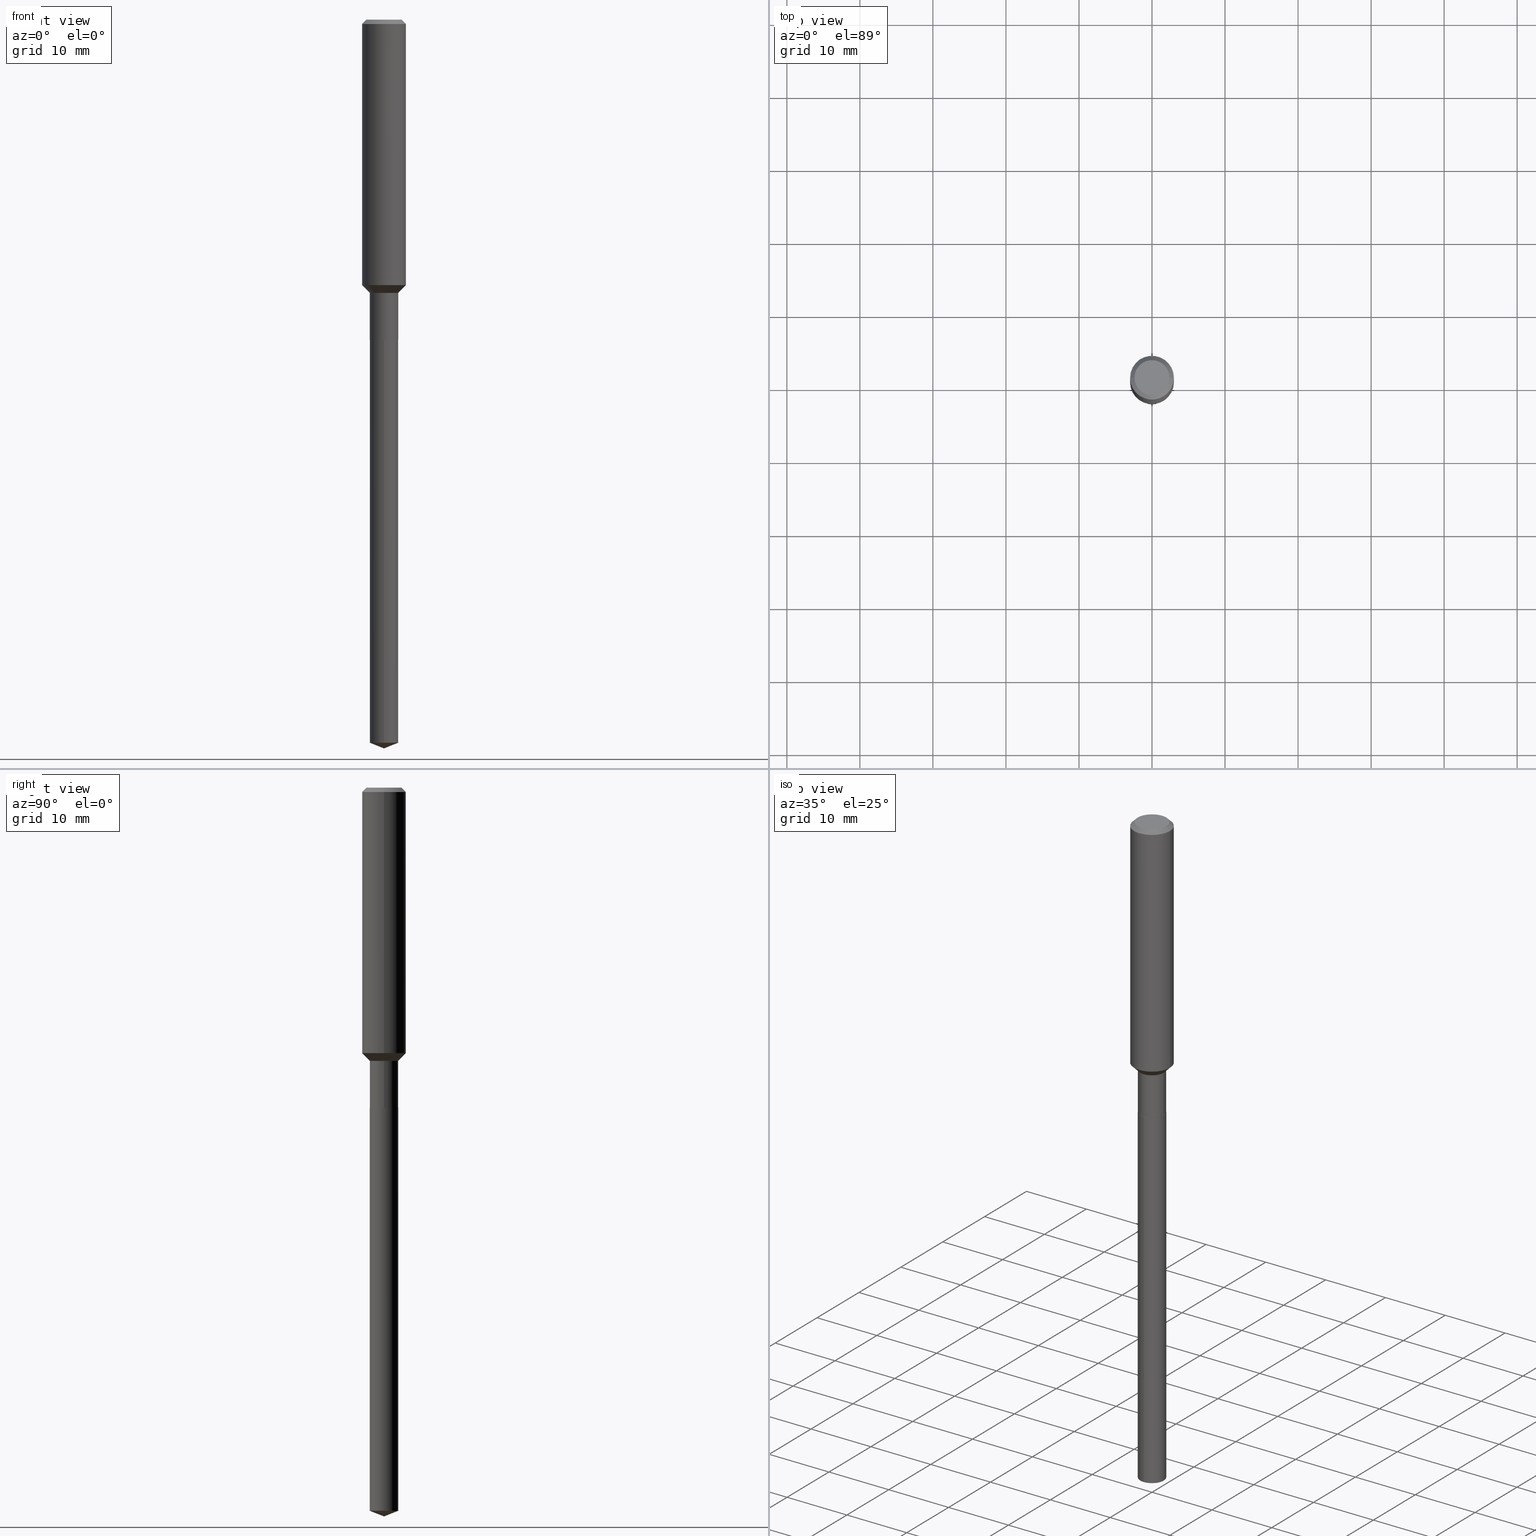
[diagram: canonical four-view strip — front | top / right | iso, engineering-drawing reading convention]
A machine part, canonical four-view strip (front | top / right | iso — engineering-drawing reading convention). The complete STEP part file that produces these views, byte-faithful:
ISO-10303-21;
HEADER;
FILE_DESCRIPTION (( 'STEP AP203' ),
    '1' );
FILE_NAME ('66718.STEP',
    '2024-04-25T04:26:13',
    ( '' ),
    ( '' ),
    'SwSTEP 2.0',
    'SolidWorks 2023',
    '' );
FILE_SCHEMA (( 'CONFIG_CONTROL_DESIGN' ));
ENDSEC;

DATA;
#1 = DIRECTION ( 'NONE',  ( 0.000000000000000000, 0.000000000000000000, 1.000000000000000000 ) ) ;
#2 = LINE ( 'NONE', #48, #432 ) ;
#3 = CIRCLE ( 'NONE', #347, 0.07675000000000001266 ) ;
#4 = AXIS2_PLACEMENT_3D ( 'NONE', #207, #213, #256 ) ;
#5 = CC_DESIGN_PERSON_AND_ORGANIZATION_ASSIGNMENT ( #417, #232, ( #169 ) ) ;
#6 = APPROVAL_PERSON_ORGANIZATION ( #115, #163, #308 ) ;
#7 = CALENDAR_DATE ( 2024, 25, 4 ) ;
#8 = DIRECTION ( 'NONE',  ( -2.445468806185136597E-29, 3.491481338843145583E-15, 1.000000000000000000 ) ) ;
#9 = EDGE_LOOP ( 'NONE', ( #483, #46, #288, #236 ) ) ;
#10 = DIRECTION ( 'NONE',  ( 1.000000000000000000, -6.982962677686271444E-15, 0.000000000000000000 ) ) ;
#11 = PERSON_AND_ORGANIZATION ( #447, #203 ) ;
#12 = DIRECTION ( 'NONE',  ( -2.445468806185136597E-29, 3.491481338843145583E-15, 1.000000000000000000 ) ) ;
#13 = CIRCLE ( 'NONE', #482, 0.07625000000000001221 ) ;
#14 = FACE_OUTER_BOUND ( 'NONE', #441, .T. ) ;
#15 = FACE_OUTER_BOUND ( 'NONE', #98, .T. ) ;
#16 = EDGE_CURVE ( 'NONE', #398, #446, #346, .T. ) ;
#17 = DIRECTION ( 'NONE',  ( -6.982962677686265922E-15, -1.000000000000000000, 3.498627837350086264E-15 ) ) ;
#18 = EDGE_LOOP ( 'NONE', ( #457, #463 ) ) ;
#19 = CIRCLE ( 'NONE', #306, 0.1180999999999999966 ) ;
#20 = DIRECTION ( 'NONE',  ( -6.982962677686265133E-15, -1.000000000000000000, 3.559411066663534686E-15 ) ) ;
#21 =( GEOMETRIC_REPRESENTATION_CONTEXT ( 3 ) GLOBAL_UNCERTAINTY_ASSIGNED_CONTEXT ( ( #238 ) ) GLOBAL_UNIT_ASSIGNED_CONTEXT ( ( #464, #459, #342 ) ) REPRESENTATION_CONTEXT ( 'NONE', 'WORKASPACE' ) );
#22 = VERTEX_POINT ( 'NONE', #245 ) ;
#23 = CARTESIAN_POINT ( 'NONE',  ( -8.666864025003283273E-28, 1.237438874958448697E-13, 35.44107874015747939 ) ) ;
#24 = ORIENTED_EDGE ( 'NONE', *, *, #31, .F. ) ;
#25 = CARTESIAN_POINT ( 'NONE',  ( 4.221368253236783353E-29, -6.026995087111038735E-15, -1.726200000000000401 ) ) ;
#26 = VERTEX_POINT ( 'NONE', #389 ) ;
#27 = PRODUCT ( '66718', '66718', '', ( #78 ) ) ;
#28 = DIRECTION ( 'NONE',  ( -6.497071151882099326E-15, -0.9304175679820215761, 0.3665012267243045185 ) ) ;
#29 = SECURITY_CLASSIFICATION ( '', '', #421 ) ;
#30 = VERTEX_POINT ( 'NONE', #418 ) ;
#31 = EDGE_CURVE ( 'NONE', #50, #84, #349, .T. ) ;
#32 = LINE ( 'NONE', #191, #329 ) ;
#33 = EDGE_CURVE ( 'NONE', #473, #44, #279, .T. ) ;
#34 = DIRECTION ( 'NONE',  ( 1.000000000000000000, -6.982962677686266711E-15, 0.000000000000000000 ) ) ;
#35 = APPROVAL_ROLE ( '' ) ;
#36 = CONICAL_SURFACE ( 'NONE', #320, 0.1180999999999999966, 0.7853981633974459475 ) ;
#37 = LOCAL_TIME ( 0, 26, 13.00000000000000000, #276 ) ;
#38 = DIRECTION ( 'NONE',  ( 0.7071067811865483499, -2.468850131082265738E-15, 0.7071067811865466846 ) ) ;
#39 = DIRECTION ( 'NONE',  ( -2.445430808607122384E-29, 3.491535753537549609E-15, 1.000000000000000000 ) ) ;
#40 = APPLICATION_PROTOCOL_DEFINITION ( 'international standard', 'config_control_design', 1994, #107 ) ;
#41 = DIRECTION ( 'NONE',  ( -2.445468806185136597E-29, 3.491481338843145583E-15, 1.000000000000000000 ) ) ;
#42 = COORDINATED_UNIVERSAL_TIME_OFFSET ( 5, 0, .BEHIND. ) ;
#43 = CARTESIAN_POINT ( 'NONE',  ( 4.220145518833691112E-29, -6.025249346441617231E-15, -1.725700000000000456 ) ) ;
#44 = VERTEX_POINT ( 'NONE', #81 ) ;
#45 = DIRECTION ( 'NONE',  ( -2.445430808607122384E-29, 3.491535753537550004E-15, 1.000000000000000000 ) ) ;
#46 = ORIENTED_EDGE ( 'NONE', *, *, #366, .T. ) ;
#47 = EDGE_CURVE ( 'NONE', #223, #22, #2, .T. ) ;
#48 = CARTESIAN_POINT ( 'NONE',  ( -5.359423855123787186E-16, -0.07675000000000603562, -1.726199999999999957 ) ) ;
#49 = DIRECTION ( 'NONE',  ( 1.000000000000000000, -6.982962677686266711E-15, 0.000000000000000000 ) ) ;
#50 = VERTEX_POINT ( 'NONE', #75 ) ;
#51 = AXIS2_PLACEMENT_3D ( 'NONE', #201, #114, #490 ) ;
#52 = CARTESIAN_POINT ( 'NONE',  ( -0.07625000000000001221, -5.482557023919850858E-15, -1.726200000000000401 ) ) ;
#53 = DIRECTION ( 'NONE',  ( 2.438088387897960049E-29, -3.491481338843145188E-15, -1.000000000000000000 ) ) ;
#54 = ORIENTED_EDGE ( 'NONE', *, *, #366, .F. ) ;
#55 = DATE_AND_TIME ( #381, #405 ) ;
#56 = CARTESIAN_POINT ( 'NONE',  ( 4.220145518833691112E-29, -6.025249346441617231E-15, -1.725700000000000456 ) ) ;
#57 = ORIENTED_EDGE ( 'NONE', *, *, #16, .T. ) ;
#58 = EDGE_CURVE ( 'NONE', #398, #44, #69, .T. ) ;
#59 = AXIS2_PLACEMENT_3D ( 'NONE', #277, #465, #391 ) ;
#60 = CARTESIAN_POINT ( 'NONE',  ( 4.221368253236783353E-29, -6.026995087111038735E-15, -1.726200000000000401 ) ) ;
#61 = AXIS2_PLACEMENT_3D ( 'NONE', #72, #229, #230 ) ;
#62 = VERTEX_POINT ( 'NONE', #384 ) ;
#63 = CARTESIAN_POINT ( 'NONE',  ( 5.776197320209328408E-31, -8.246878922347560526E-17, -0.02362000000000014435 ) ) ;
#64 = EDGE_CURVE ( 'NONE', #62, #473, #3, .T. ) ;
#65 = EDGE_LOOP ( 'NONE', ( #328, #408, #292 ) ) ;
#66 = LINE ( 'NONE', #370, #110 ) ;
#67 = EDGE_LOOP ( 'NONE', ( #316, #129, #335, #358 ) ) ;
#68 = CARTESIAN_POINT ( 'NONE',  ( 0.1180999999999999966, -8.926936027602933910E-16, -0.02362000000000014435 ) ) ;
#69 = CIRCLE ( 'NONE', #227, 0.07674999999999997102 ) ;
#70 = AXIS2_PLACEMENT_3D ( 'NONE', #437, #360, #131 ) ;
#71 = ADVANCED_FACE ( 'NONE', ( #197 ), #343, .T. ) ;
#72 = CARTESIAN_POINT ( 'NONE',  ( 4.221368253236783353E-29, -6.026995087111038735E-15, -1.726200000000000401 ) ) ;
#73 = DATE_AND_TIME ( #317, #37 ) ;
#74 = APPROVAL_STATUS ( 'not_yet_approved' ) ;
#75 = CARTESIAN_POINT ( 'NONE',  ( 0.1181000000000001632, -5.823267150989537830E-15, -1.431650000000000089 ) ) ;
#76 = CIRCLE ( 'NONE', #404, 0.09447999999999998066 ) ;
#77 = VECTOR ( 'NONE', #484, 39.37007874015748143 ) ;
#78 = MECHANICAL_CONTEXT ( 'NONE', #107, 'mechanical' ) ;
#79 = DIRECTION ( 'NONE',  ( 1.000000000000000000, -6.982962677686261977E-15, 0.000000000000000000 ) ) ;
#80 = APPROVAL ( #244, 'UNSPECIFIED' ) ;
#81 = CARTESIAN_POINT ( 'NONE',  ( 0.07674999999999997102, -5.678894397628374357E-15, -1.473000000000000087 ) ) ;
#82 = EDGE_LOOP ( 'NONE', ( #478, #264, #255, #221 ) ) ;
#83 = DESIGN_CONTEXT ( 'detailed design', #198, 'design' ) ;
#84 = VERTEX_POINT ( 'NONE', #166 ) ;
#85 = EDGE_CURVE ( 'NONE', #50, #446, #327, .T. ) ;
#86 = COORDINATED_UNIVERSAL_TIME_OFFSET ( 5, 0, .BEHIND. ) ;
#87 = CARTESIAN_POINT ( 'NONE',  ( 3.602175551510706507E-29, -5.142952012115953829E-15, -1.473000000000000087 ) ) ;
#88 = CARTESIAN_POINT ( 'NONE',  ( 5.776197320209328408E-31, -8.246878922347560526E-17, -0.02362000000000014435 ) ) ;
#89 = CARTESIAN_POINT ( 'NONE',  ( -0.1181000000000000799, 8.391509709326788873E-16, -5.809262341591047988E-30 ) ) ;
#90 = CONICAL_SURFACE ( 'NONE', #373, 99.94676754583763056, 1.195550537616111519 ) ;
#91 = AXIS2_PLACEMENT_3D ( 'NONE', #139, #295, #442 ) ;
#92 = DIRECTION ( 'NONE',  ( -2.445430808607122384E-29, 3.491535753537550004E-15, 1.000000000000000000 ) ) ;
#93 = ADVANCED_FACE ( 'NONE', ( #382 ), #297, .T. ) ;
#94 = ORIENTED_EDGE ( 'NONE', *, *, #16, .F. ) ;
#95 = DIRECTION ( 'NONE',  ( -2.445468806185136597E-29, 3.491481338843145583E-15, 1.000000000000000000 ) ) ;
#96 = ORIENTED_EDGE ( 'NONE', *, *, #413, .T. ) ;
#97 = FACE_OUTER_BOUND ( 'NONE', #439, .T. ) ;
#98 = EDGE_LOOP ( 'NONE', ( #246, #57, #219, #257 ) ) ;
#99 = EDGE_CURVE ( 'NONE', #26, #473, #122, .T. ) ;
#100 = AXIS2_PLACEMENT_3D ( 'NONE', #56, #218, #210 ) ;
#101 = CARTESIAN_POINT ( 'NONE',  ( 9.608097647017384932E-29, -1.371824397564903404E-14, -3.929000000000000270 ) ) ;
#102 = ORIENTED_EDGE ( 'NONE', *, *, #145, .F. ) ;
#103 = LINE ( 'NONE', #68, #377 ) ;
#104 = ORIENTED_EDGE ( 'NONE', *, *, #33, .T. ) ;
#105 = CYLINDRICAL_SURFACE ( 'NONE', #233, 0.1181000000000000799 ) ;
#106 = EDGE_CURVE ( 'NONE', #446, #50, #466, .T. ) ;
#107 = APPLICATION_CONTEXT ( 'configuration controlled 3d designs of mechanical parts and assemblies' ) ;
#108 = LINE ( 'NONE', #365, #77 ) ;
#109 = CIRCLE ( 'NONE', #348, 0.07674999999999997102 ) ;
#110 = VECTOR ( 'NONE', #28, 39.37007874015748143 ) ;
#111 = FACE_OUTER_BOUND ( 'NONE', #82, .T. ) ;
#112 = ADVANCED_FACE ( 'NONE', ( #456 ), #452, .T. ) ;
#113 = COORDINATED_UNIVERSAL_TIME_OFFSET ( 5, 0, .BEHIND. ) ;
#114 = DIRECTION ( 'NONE',  ( 2.445468806185136597E-29, -3.491481338843145583E-15, -1.000000000000000000 ) ) ;
#115 = PERSON_AND_ORGANIZATION ( #447, #203 ) ;
#116 = ORIENTED_EDGE ( 'NONE', *, *, #269, .F. ) ;
#117 = AXIS2_PLACEMENT_3D ( 'NONE', #319, #290, #20 ) ;
#118 = DATE_AND_TIME ( #7, #390 ) ;
#119 = CARTESIAN_POINT ( 'NONE',  ( -0.07674999999999997102, -4.597610462420077043E-15, -1.473000000000000087 ) ) ;
#120 = EDGE_CURVE ( 'NONE', #435, #223, #202, .T. ) ;
#121 = APPROVAL_DATE_TIME ( #237, #155 ) ;
#122 = LINE ( 'NONE', #125, #336 ) ;
#123 = EDGE_CURVE ( 'NONE', #223, #435, #388, .T. ) ;
#124 = ORIENTED_EDGE ( 'NONE', *, *, #394, .T. ) ;
#125 = CARTESIAN_POINT ( 'NONE',  ( 0.07625000000000001221, -6.559445991284616256E-15, -1.726200000000000401 ) ) ;
#126 = AXIS2_PLACEMENT_3D ( 'NONE', #254, #251, #362 ) ;
#127 = LOCAL_TIME ( 0, 26, 13.00000000000000000, #86 ) ;
#128 = FACE_OUTER_BOUND ( 'NONE', #184, .T. ) ;
#129 = ORIENTED_EDGE ( 'NONE', *, *, #106, .T. ) ;
#130 = CARTESIAN_POINT ( 'NONE',  ( -8.666864025003283273E-28, 1.237438874958448697E-13, 35.44107874015747939 ) ) ;
#131 = DIRECTION ( 'NONE',  ( 1.000000000000000000, -6.982962677686266711E-15, 4.876176775795936353E-29 ) ) ;
#132 = VERTEX_POINT ( 'NONE', #52 ) ;
#133 = CIRCLE ( 'NONE', #100, 0.07675000000000001266 ) ;
#134 = AXIS2_PLACEMENT_3D ( 'NONE', #25, #265, #375 ) ;
#135 = DIRECTION ( 'NONE',  ( -1.000000000000000000, 6.982962677686265922E-15, -4.876176775795935793E-29 ) ) ;
#136 = EDGE_LOOP ( 'NONE', ( #480, #226, #424, #284 ) ) ;
#137 = FACE_OUTER_BOUND ( 'NONE', #144, .T. ) ;
#138 = ORIENTED_EDGE ( 'NONE', *, *, #434, .T. ) ;
#139 = CARTESIAN_POINT ( 'NONE',  ( 4.716267017698007905E-46, -6.733579360998555036E-32, -1.928573779297252010E-17 ) ) ;
#140 = EDGE_LOOP ( 'NONE', ( #94, #425, #294, #371 ) ) ;
#141 = AXIS2_PLACEMENT_3D ( 'NONE', #192, #183, #450 ) ;
#142 = DIRECTION ( 'NONE',  ( -2.445468806185136597E-29, 3.491481338843145583E-15, 1.000000000000000000 ) ) ;
#143 = CIRCLE ( 'NONE', #91, 0.09447999999999998066 ) ;
#144 = EDGE_LOOP ( 'NONE', ( #96, #333 ) ) ;
#145 = EDGE_CURVE ( 'NONE', #30, #22, #187, .T. ) ;
#146 = FACE_OUTER_BOUND ( 'NONE', #186, .T. ) ;
#147 = DIRECTION ( 'NONE',  ( -2.445468806185136597E-29, 3.491481338843145583E-15, 1.000000000000000000 ) ) ;
#148 = CARTESIAN_POINT ( 'NONE',  ( -0.1180999999999999966, -1.701373053056452935E-15, -0.02362000000000014435 ) ) ;
#149 = VECTOR ( 'NONE', #422, 39.37007874015748143 ) ;
#150 = DIRECTION ( 'NONE',  ( -2.445430808607122384E-29, 3.491535753537550004E-15, 1.000000000000000000 ) ) ;
#151 = CONICAL_SURFACE ( 'NONE', #168, 99.94676754583763056, 1.195550537616111519 ) ;
#152 = CIRCLE ( 'NONE', #242, 0.07625000000000001221 ) ;
#153 = ADVANCED_FACE ( 'NONE', ( #474 ), #397, .F. ) ;
#154 = DATE_TIME_ROLE ( 'creation_date' ) ;
#155 = APPROVAL ( #74, 'UNSPECIFIED' ) ;
#156 = CARTESIAN_POINT ( 'NONE',  ( 4.221368253236783353E-29, -6.026995087111038735E-15, -1.726200000000000401 ) ) ;
#157 = CARTESIAN_POINT ( 'NONE',  ( 9.534231436046332391E-29, -1.361259173991458083E-14, -3.898767370996552906 ) ) ;
#158 = ADVANCED_FACE ( 'NONE', ( #167 ), #402, .T. ) ;
#159 = PERSON_AND_ORGANIZATION_ROLE ( 'design_owner' ) ;
#160 = DIRECTION ( 'NONE',  ( -6.982962677686265133E-15, -1.000000000000000000, 0.000000000000000000 ) ) ;
#161 = AXIS2_PLACEMENT_3D ( 'NONE', #285, #53, #135 ) ;
#162 = PERSON_AND_ORGANIZATION ( #447, #203 ) ;
#163 = APPROVAL ( #273, 'UNSPECIFIED' ) ;
#164 = VERTEX_POINT ( 'NONE', #355 ) ;
#165 = CARTESIAN_POINT ( 'NONE',  ( 0.000000000000000000, 0.000000000000000000, 0.000000000000000000 ) ) ;
#166 = CARTESIAN_POINT ( 'NONE',  ( 0.1180999999999999966, -9.071566814582237199E-16, -0.02362000000000014435 ) ) ;
#167 = FACE_OUTER_BOUND ( 'NONE', #354, .T. ) ;
#168 = AXIS2_PLACEMENT_3D ( 'NONE', #23, #150, #222 ) ;
#169 = PRODUCT_DEFINITION_FORMATION_WITH_SPECIFIED_SOURCE ( 'ANY', '', #27, .NOT_KNOWN. ) ;
#170 = LINE ( 'NONE', #89, #228 ) ;
#171 = EDGE_CURVE ( 'NONE', #296, #164, #76, .T. ) ;
#172 = DIRECTION ( 'NONE',  ( -2.445468806185136597E-29, 3.491481338843145583E-15, 1.000000000000000000 ) ) ;
#173 = APPROVAL_ROLE ( '' ) ;
#174 = ADVANCED_FACE ( 'NONE', ( #128 ), #283, .T. ) ;
#175 = CARTESIAN_POINT ( 'NONE',  ( 3.602175551510706507E-29, -5.142952012115953829E-15, -1.473000000000000087 ) ) ;
#176 = ORIENTED_EDGE ( 'NONE', *, *, #438, .F. ) ;
#177 = CIRCLE ( 'NONE', #258, 0.1180999999999999966 ) ;
#178 = AXIS2_PLACEMENT_3D ( 'NONE', #175, #172, #324 ) ;
#179 = CC_DESIGN_APPROVAL ( #163, ( #169 ) ) ;
#180 = CARTESIAN_POINT ( 'NONE',  ( 5.776197320209328408E-31, -8.246878922347560526E-17, -0.02362000000000014435 ) ) ;
#181 = PRODUCT_DEFINITION ( 'UNKNOWN', '', #169, #83 ) ;
#182 = ORIENTED_EDGE ( 'NONE', *, *, #171, .F. ) ;
#183 = DIRECTION ( 'NONE',  ( -2.445468806185136597E-29, 3.491481338843145583E-15, 1.000000000000000000 ) ) ;
#184 = EDGE_LOOP ( 'NONE', ( #189, #124, #204, #367 ) ) ;
#185 = LINE ( 'NONE', #224, #467 ) ;
#186 = EDGE_LOOP ( 'NONE', ( #248, #400, #369, #24 ) ) ;
#187 = CIRCLE ( 'NONE', #266, 0.07675000000000001266 ) ;
#188 = CARTESIAN_POINT ( 'NONE',  ( -0.1181000000000001632, -4.159428287822109792E-15, -1.431650000000000089 ) ) ;
#189 = ORIENTED_EDGE ( 'NONE', *, *, #123, .T. ) ;
#190 = ADVANCED_FACE ( 'NONE', ( #14 ), #90, .T. ) ;
#191 = CARTESIAN_POINT ( 'NONE',  ( 0.07674999999999997102, -5.678894397628374357E-15, -1.473000000000000087 ) ) ;
#192 = CARTESIAN_POINT ( 'NONE',  ( 3.602175551510706507E-29, -5.142952012115953829E-15, -1.473000000000000087 ) ) ;
#193 = APPLICATION_PROTOCOL_DEFINITION ( 'international standard', 'config_control_design', 1994, #198 ) ;
#194 = CONICAL_SURFACE ( 'NONE', #178, 0.07674999999999997102, 0.7853981633974495002 ) ;
#195 = APPROVAL_PERSON_ORGANIZATION ( #11, #80, #173 ) ;
#196 = PERSON_AND_ORGANIZATION_ROLE ( 'classification_officer' ) ;
#197 = FACE_OUTER_BOUND ( 'NONE', #274, .T. ) ;
#198 = APPLICATION_CONTEXT ( 'configuration controlled 3d designs of mechanical parts and assemblies' ) ;
#199 =( LENGTH_UNIT ( ) NAMED_UNIT ( * ) SI_UNIT ( $, .METRE. ) );
#200 = DIRECTION ( 'NONE',  ( -2.445430808607122384E-29, 3.491535753537550004E-15, 1.000000000000000000 ) ) ;
#201 = CARTESIAN_POINT ( 'NONE',  ( 5.776197320209328408E-31, -8.246878922347560526E-17, -0.02362000000000014435 ) ) ;
#202 = CIRCLE ( 'NONE', #451, 0.07675000000000001266 ) ;
#203 = ORGANIZATION ( 'UNSPECIFIED', 'UNSPECIFIED', '' ) ;
#204 = ORIENTED_EDGE ( 'NONE', *, *, #471, .F. ) ;
#205 = APPROVAL_DATE_TIME ( #118, #163 ) ;
#206 = ORIENTED_EDGE ( 'NONE', *, *, #120, .T. ) ;
#207 = CARTESIAN_POINT ( 'NONE',  ( 0.000000000000000000, 0.000000000000000000, 0.000000000000000000 ) ) ;
#208 = ADVANCED_FACE ( 'NONE', ( #15 ), #194, .T. ) ;
#209 = ORIENTED_EDGE ( 'NONE', *, *, #376, .T. ) ;
#210 = DIRECTION ( 'NONE',  ( 1.000000000000000000, -6.982962677686271444E-15, 0.000000000000000000 ) ) ;
#211 = VECTOR ( 'NONE', #234, 39.37007874015748143 ) ;
#212 = ORIENTED_EDGE ( 'NONE', *, *, #394, .F. ) ;
#213 = DIRECTION ( 'NONE',  ( -2.445468806185136597E-29, 3.491481338843145583E-15, 1.000000000000000000 ) ) ;
#214 = CALENDAR_DATE ( 2024, 25, 4 ) ;
#215 = CARTESIAN_POINT ( 'NONE',  ( -0.1180999999999999966, 7.422191030112725094E-16, -0.02362000000000014435 ) ) ;
#216 = ORIENTED_EDGE ( 'NONE', *, *, #33, .F. ) ;
#217 = ADVANCED_FACE ( 'NONE', ( #137 ), #326, .F. ) ;
#218 = DIRECTION ( 'NONE',  ( -2.445468806185136597E-29, 3.491481338843145583E-15, 1.000000000000000000 ) ) ;
#219 = ORIENTED_EDGE ( 'NONE', *, *, #85, .F. ) ;
#220 = DIRECTION ( 'NONE',  ( -2.445430808607122384E-29, 3.491535753537549609E-15, 1.000000000000000000 ) ) ;
#221 = ORIENTED_EDGE ( 'NONE', *, *, #99, .F. ) ;
#222 = DIRECTION ( 'NONE',  ( -6.982962677686265922E-15, -1.000000000000000000, 3.498627837350086264E-15 ) ) ;
#223 = VERTEX_POINT ( 'NONE', #433 ) ;
#224 = CARTESIAN_POINT ( 'NONE',  ( 9.608229980174364791E-29, -1.371805611435807175E-14, -3.929000000000000270 ) ) ;
#225 = CC_DESIGN_PERSON_AND_ORGANIZATION_ASSIGNMENT ( #387, #351, ( #181 ) ) ;
#226 = ORIENTED_EDGE ( 'NONE', *, *, #413, .F. ) ;
#227 = AXIS2_PLACEMENT_3D ( 'NONE', #87, #423, #79 ) ;
#228 = VECTOR ( 'NONE', #249, 39.37007874015748143 ) ;
#229 = DIRECTION ( 'NONE',  ( -2.438088387897960049E-29, 3.491481338843145188E-15, 1.000000000000000000 ) ) ;
#230 = DIRECTION ( 'NONE',  ( 1.000000000000000000, -6.982962677686265922E-15, 4.876176775795935793E-29 ) ) ;
#231 = EDGE_CURVE ( 'NONE', #164, #364, #472, .T. ) ;
#232 = PERSON_AND_ORGANIZATION_ROLE ( 'design_supplier' ) ;
#233 = AXIS2_PLACEMENT_3D ( 'NONE', #307, #301, #449 ) ;
#234 = DIRECTION ( 'NONE',  ( -0.7071067811865483499, 7.493145998870357316E-15, 0.7071067811865466846 ) ) ;
#235 = COORDINATED_UNIVERSAL_TIME_OFFSET ( 5, 0, .BEHIND. ) ;
#236 = ORIENTED_EDGE ( 'NONE', *, *, #64, .F. ) ;
#237 = DATE_AND_TIME ( #462, #420 ) ;
#238 = UNCERTAINTY_MEASURE_WITH_UNIT (LENGTH_MEASURE( 1.000000000000000082E-05 ), #464, 'distance_accuracy_value', 'NONE');
#239 = ORIENTED_EDGE ( 'NONE', *, *, #434, .F. ) ;
#240 = EDGE_LOOP ( 'NONE', ( #331, #54 ) ) ;
#241 = CC_DESIGN_SECURITY_CLASSIFICATION ( #29, ( #169 ) ) ;
#242 = AXIS2_PLACEMENT_3D ( 'NONE', #60, #142, #303 ) ;
#243 = ADVANCED_FACE ( 'NONE', ( #97 ), #36, .T. ) ;
#244 = APPROVAL_STATUS ( 'not_yet_approved' ) ;
#245 = CARTESIAN_POINT ( 'NONE',  ( -5.359423855123787186E-16, -0.07675000000000603562, -1.726199999999999957 ) ) ;
#246 = ORIENTED_EDGE ( 'NONE', *, *, #269, .T. ) ;
#247 = CARTESIAN_POINT ( 'NONE',  ( 4.221368253236783353E-29, -6.026995087111038735E-15, -1.726200000000000401 ) ) ;
#248 = ORIENTED_EDGE ( 'NONE', *, *, #85, .T. ) ;
#249 = DIRECTION ( 'NONE',  ( -2.445468806185136877E-29, 3.491481338843145188E-15, 1.000000000000000000 ) ) ;
#250 = AXIS2_PLACEMENT_3D ( 'NONE', #165, #1, #489 ) ;
#251 = DIRECTION ( 'NONE',  ( 2.445430808607122104E-29, -3.491535753537549609E-15, -1.000000000000000000 ) ) ;
#252 = ORIENTED_EDGE ( 'NONE', *, *, #287, .T. ) ;
#253 = DATE_AND_TIME ( #214, #127 ) ;
#254 = CARTESIAN_POINT ( 'NONE',  ( 4.221368253236783353E-29, -6.026995087111038735E-15, -1.726200000000000401 ) ) ;
#255 = ORIENTED_EDGE ( 'NONE', *, *, #287, .F. ) ;
#256 = DIRECTION ( 'NONE',  ( 1.000000000000000000, -6.982962677686267499E-15, 4.876176775795935793E-29 ) ) ;
#257 = ORIENTED_EDGE ( 'NONE', *, *, #460, .F. ) ;
#258 = AXIS2_PLACEMENT_3D ( 'NONE', #180, #95, #49 ) ;
#259 = APPROVAL_PERSON_ORGANIZATION ( #271, #155, #35 ) ;
#260 = DIRECTION ( 'NONE',  ( -2.445468806185136597E-29, 3.491481338843145583E-15, 1.000000000000000000 ) ) ;
#261 = ORIENTED_EDGE ( 'NONE', *, *, #282, .T. ) ;
#262 = DIRECTION ( 'NONE',  ( -2.445468806185136597E-29, 3.491481338843145583E-15, 1.000000000000000000 ) ) ;
#263 = ADVANCED_FACE ( 'NONE', ( #330 ), #399, .T. ) ;
#264 = ORIENTED_EDGE ( 'NONE', *, *, #396, .T. ) ;
#265 = DIRECTION ( 'NONE',  ( -2.445468806185136597E-29, 3.491481338843145583E-15, 1.000000000000000000 ) ) ;
#266 = AXIS2_PLACEMENT_3D ( 'NONE', #247, #395, #468 ) ;
#267 = CYLINDRICAL_SURFACE ( 'NONE', #350, 0.07674999999999998490 ) ;
#268 = CONICAL_SURFACE ( 'NONE', #134, 0.07625000000000001221, 0.7853981633975507526 ) ;
#269 = EDGE_CURVE ( 'NONE', #44, #398, #109, .T. ) ;
#270 = DIRECTION ( 'NONE',  ( 1.000000000000000000, -6.982962677686267499E-15, 4.876176775795935793E-29 ) ) ;
#271 = PERSON_AND_ORGANIZATION ( #447, #203 ) ;
#272 = CARTESIAN_POINT ( 'NONE',  ( 0.07674999999999998490, -5.359423855124209227E-16, 3.742465675423380104E-30 ) ) ;
#273 = APPROVAL_STATUS ( 'not_yet_approved' ) ;
#274 = EDGE_LOOP ( 'NONE', ( #212, #206, #444, #102 ) ) ;
#275 = MANIFOLD_SOLID_BREP ( 'Body-Move/Copy2[1]', #305 ) ;
#276 = COORDINATED_UNIVERSAL_TIME_OFFSET ( 5, 0, .BEHIND. ) ;
#277 = CARTESIAN_POINT ( 'NONE',  ( 4.221368253236783353E-29, -6.026995087111038735E-15, -1.726200000000000401 ) ) ;
#278 = PERSON_AND_ORGANIZATION ( #447, #203 ) ;
#279 = LINE ( 'NONE', #272, #149 ) ;
#280 = DIRECTION ( 'NONE',  ( -2.445430808607122384E-29, 3.491535753537550004E-15, 1.000000000000000000 ) ) ;
#281 = AXIS2_PLACEMENT_3D ( 'NONE', #310, #280, #338 ) ;
#282 = EDGE_CURVE ( 'NONE', #84, #364, #177, .T. ) ;
#283 = CYLINDRICAL_SURFACE ( 'NONE', #117, 0.07675000000000001266 ) ;
#284 = ORIENTED_EDGE ( 'NONE', *, *, #302, .T. ) ;
#285 = CARTESIAN_POINT ( 'NONE',  ( 2.358133508849003952E-46, -3.366789680499277518E-32, -9.642868896486260050E-18 ) ) ;
#286 = CARTESIAN_POINT ( 'NONE',  ( 3.602175551510706507E-29, -5.142952012115953829E-15, -1.473000000000000087 ) ) ;
#287 = EDGE_CURVE ( 'NONE', #473, #62, #133, .T. ) ;
#288 = ORIENTED_EDGE ( 'NONE', *, *, #99, .T. ) ;
#289 = DIMENSIONAL_EXPONENTS ( 1.000000000000000000, 0.000000000000000000, 0.000000000000000000, 0.000000000000000000, 0.000000000000000000, 0.000000000000000000, 0.000000000000000000 ) ;
#290 = DIRECTION ( 'NONE',  ( -2.445430808607122384E-29, 3.491535753537550004E-15, 1.000000000000000000 ) ) ;
#291 = EDGE_CURVE ( 'NONE', #446, #364, #170, .T. ) ;
#292 = ORIENTED_EDGE ( 'NONE', *, *, #120, .F. ) ;
#293 = CARTESIAN_POINT ( 'NONE',  ( 0.09447999999999998066, -7.704367267948738690E-16, -1.928573779296752193E-17 ) ) ;
#294 = ORIENTED_EDGE ( 'NONE', *, *, #460, .T. ) ;
#295 = DIRECTION ( 'NONE',  ( -2.445468806185136597E-29, 3.491481338843145583E-15, 1.000000000000000000 ) ) ;
#296 = VERTEX_POINT ( 'NONE', #293 ) ;
#297 = CONICAL_SURFACE ( 'NONE', #59, 0.07625000000000001221, 0.7853981633975507526 ) ;
#298 = EDGE_CURVE ( 'NONE', #296, #84, #103, .T. ) ;
#299 = CARTESIAN_POINT ( 'NONE',  ( -0.07674999999999997102, -5.038759129582908744E-15, -1.473000000000000087 ) ) ;
#300 = ORIENTED_EDGE ( 'NONE', *, *, #298, .T. ) ;
#301 = DIRECTION ( 'NONE',  ( -2.445468806185136597E-29, 3.491481338843145583E-15, 1.000000000000000000 ) ) ;
#302 = EDGE_CURVE ( 'NONE', #364, #84, #19, .T. ) ;
#303 = DIRECTION ( 'NONE',  ( 1.000000000000000000, -6.982962677686265133E-15, 0.000000000000000000 ) ) ;
#304 = ADVANCED_FACE ( 'NONE', ( #339 ), #151, .T. ) ;
#305 = CLOSED_SHELL ( 'NONE', ( #174, #190, #304, #71, #153 ) ) ;
#306 = AXIS2_PLACEMENT_3D ( 'NONE', #63, #260, #34 ) ;
#307 = CARTESIAN_POINT ( 'NONE',  ( 0.000000000000000000, 0.000000000000000000, 0.000000000000000000 ) ) ;
#308 = APPROVAL_ROLE ( '' ) ;
#309 = DIRECTION ( 'NONE',  ( 1.000000000000000000, -6.982962677686270655E-15, 0.000000000000000000 ) ) ;
#310 = CARTESIAN_POINT ( 'NONE',  ( 4.221368253236783353E-29, -6.026995087111038735E-15, -1.726200000000000401 ) ) ;
#311 = ADVANCED_FACE ( 'NONE', ( #146 ), #105, .T. ) ;
#312 = VECTOR ( 'NONE', #380, 39.37007874015748143 ) ;
#313 = DIRECTION ( 'NONE',  ( -6.982962677686265133E-15, -1.000000000000000000, 3.559411066663534686E-15 ) ) ;
#314 = CARTESIAN_POINT ( 'NONE',  ( 3.501055416374951220E-29, -4.998579258754789567E-15, -1.431650000000000089 ) ) ;
#315 = PERSON_AND_ORGANIZATION_ROLE ( 'creator' ) ;
#316 = ORIENTED_EDGE ( 'NONE', *, *, #291, .F. ) ;
#317 = CALENDAR_DATE ( 2024, 25, 4 ) ;
#318 = DIRECTION ( 'NONE',  ( 1.000000000000000000, -6.982962677686270655E-15, 0.000000000000000000 ) ) ;
#319 = CARTESIAN_POINT ( 'NONE',  ( 4.221368253236783353E-29, -6.026995087111038735E-15, -1.726200000000000401 ) ) ;
#320 = AXIS2_PLACEMENT_3D ( 'NONE', #88, #427, #393 ) ;
#321 = CC_DESIGN_APPROVAL ( #80, ( #29 ) ) ;
#322 = DIRECTION ( 'NONE',  ( 1.000000000000000000, -6.982962677686261977E-15, 0.000000000000000000 ) ) ;
#323 = ADVANCED_FACE ( 'NONE', ( #481 ), #356, .T. ) ;
#324 = DIRECTION ( 'NONE',  ( 1.000000000000000000, -6.982962677686261977E-15, 0.000000000000000000 ) ) ;
#325 = CC_DESIGN_DATE_AND_TIME_ASSIGNMENT ( #55, #392, ( #29 ) ) ;
#326 = PLANE ( 'NONE',  #161 ) ;
#327 = CIRCLE ( 'NONE', #419, 0.1181000000000001632 ) ;
#328 = ORIENTED_EDGE ( 'NONE', *, *, #376, .F. ) ;
#329 = VECTOR ( 'NONE', #38, 39.37007874015748143 ) ;
#330 = FACE_OUTER_BOUND ( 'NONE', #67, .T. ) ;
#331 = ORIENTED_EDGE ( 'NONE', *, *, #383, .F. ) ;
#332 = CARTESIAN_POINT ( 'NONE',  ( 4.221368253236783353E-29, -6.026995087111038735E-15, -1.726200000000000401 ) ) ;
#333 = ORIENTED_EDGE ( 'NONE', *, *, #171, .T. ) ;
#334 = LINE ( 'NONE', #337, #357 ) ;
#335 = ORIENTED_EDGE ( 'NONE', *, *, #31, .T. ) ;
#336 = VECTOR ( 'NONE', #426, 39.37007874015748143 ) ;
#337 = CARTESIAN_POINT ( 'NONE',  ( 5.453415496959190880E-16, 0.07674999999999397582, -1.726200000000000623 ) ) ;
#338 = DIRECTION ( 'NONE',  ( -6.982962677686265133E-15, -1.000000000000000000, 3.559411066663534686E-15 ) ) ;
#339 = FACE_OUTER_BOUND ( 'NONE', #65, .T. ) ;
#340 = CARTESIAN_POINT ( 'NONE',  ( 0.000000000000000000, 0.000000000000000000, 0.000000000000000000 ) ) ;
#341 = VECTOR ( 'NONE', #487, 39.37007874015748143 ) ;
#342 =( NAMED_UNIT ( * ) SI_UNIT ( $, .STERADIAN. ) SOLID_ANGLE_UNIT ( ) );
#343 = CYLINDRICAL_SURFACE ( 'NONE', #281, 0.07675000000000001266 ) ;
#344 = CC_DESIGN_PERSON_AND_ORGANIZATION_ASSIGNMENT ( #278, #159, ( #27 ) ) ;
#345 = ADVANCED_BREP_SHAPE_REPRESENTATION ( '66718', ( #275, #431, #250 ), #21 ) ;
#346 = LINE ( 'NONE', #119, #211 ) ;
#347 = AXIS2_PLACEMENT_3D ( 'NONE', #43, #8, #10 ) ;
#348 = AXIS2_PLACEMENT_3D ( 'NONE', #286, #430, #322 ) ;
#349 = LINE ( 'NONE', #352, #312 ) ;
#350 = AXIS2_PLACEMENT_3D ( 'NONE', #340, #262, #270 ) ;
#351 = PERSON_AND_ORGANIZATION_ROLE ( 'creator' ) ;
#352 = CARTESIAN_POINT ( 'NONE',  ( 0.1181000000000000799, -8.246878922347486570E-16, 5.758764772215004644E-30 ) ) ;
#353 = CARTESIAN_POINT ( 'NONE',  ( 4.716267017698007905E-46, -6.733579360998555036E-32, -1.928573779297252010E-17 ) ) ;
#354 = EDGE_LOOP ( 'NONE', ( #252, #138, #116, #216 ) ) ;
#355 = CARTESIAN_POINT ( 'NONE',  ( -0.09447999999999998066, 7.009847083995354710E-16, -1.928573779297727792E-17 ) ) ;
#356 = CONICAL_SURFACE ( 'NONE', #141, 0.07674999999999997102, 0.7853981633974495002 ) ;
#357 = VECTOR ( 'NONE', #220, 39.37007874015748143 ) ;
#358 = ORIENTED_EDGE ( 'NONE', *, *, #302, .F. ) ;
#359 = DIRECTION ( 'NONE',  ( 1.000000000000000000, -6.982962677686267499E-15, 4.875432709231658792E-29 ) ) ;
#360 = DIRECTION ( 'NONE',  ( -2.445468806185136597E-29, 3.491481338843145583E-15, 1.000000000000000000 ) ) ;
#361 = ORIENTED_EDGE ( 'NONE', *, *, #58, .F. ) ;
#362 = DIRECTION ( 'NONE',  ( 6.982962677686265922E-15, 1.000000000000000000, -3.491535753537549609E-15 ) ) ;
#363 = AXIS2_PLACEMENT_3D ( 'NONE', #461, #469, #477 ) ;
#364 = VERTEX_POINT ( 'NONE', #148 ) ;
#365 = CARTESIAN_POINT ( 'NONE',  ( -0.07625000000000001221, -5.485206251093962059E-15, -1.726200000000000401 ) ) ;
#366 = EDGE_CURVE ( 'NONE', #132, #26, #13, .T. ) ;
#367 = ORIENTED_EDGE ( 'NONE', *, *, #47, .F. ) ;
#368 = DIRECTION ( 'NONE',  ( 1.000000000000000000, -6.982962677686265133E-15, 0.000000000000000000 ) ) ;
#369 = ORIENTED_EDGE ( 'NONE', *, *, #282, .F. ) ;
#370 = CARTESIAN_POINT ( 'NONE',  ( 9.608097647017384932E-29, -1.371824397564903404E-14, -3.929000000000000270 ) ) ;
#371 = ORIENTED_EDGE ( 'NONE', *, *, #106, .F. ) ;
#372 = ADVANCED_FACE ( 'NONE', ( #111 ), #268, .T. ) ;
#373 = AXIS2_PLACEMENT_3D ( 'NONE', #130, #92, #17 ) ;
#374 = CARTESIAN_POINT ( 'NONE',  ( -0.07674999999999998490, 5.453415496958767854E-16, -3.775282681770639631E-30 ) ) ;
#375 = DIRECTION ( 'NONE',  ( 1.000000000000000000, -6.982962677686265133E-15, 0.000000000000000000 ) ) ;
#376 = EDGE_CURVE ( 'NONE', #428, #435, #185, .T. ) ;
#377 = VECTOR ( 'NONE', #486, 39.37007874015748143 ) ;
#378 = CC_DESIGN_APPROVAL ( #155, ( #181 ) ) ;
#379 = PERSON_AND_ORGANIZATION ( #447, #203 ) ;
#380 = DIRECTION ( 'NONE',  ( -2.445468806185136877E-29, 3.491481338843145188E-15, 1.000000000000000000 ) ) ;
#381 = CALENDAR_DATE ( 2024, 25, 4 ) ;
#382 = FACE_OUTER_BOUND ( 'NONE', #9, .T. ) ;
#383 = EDGE_CURVE ( 'NONE', #26, #132, #152, .T. ) ;
#384 = CARTESIAN_POINT ( 'NONE',  ( -0.07675000000000001266, -5.038759129582908744E-15, -1.725700000000000456 ) ) ;
#385 = ORIENTED_EDGE ( 'NONE', *, *, #64, .T. ) ;
#386 = CC_DESIGN_DATE_AND_TIME_ASSIGNMENT ( #73, #154, ( #181 ) ) ;
#387 = PERSON_AND_ORGANIZATION ( #447, #203 ) ;
#388 = CIRCLE ( 'NONE', #363, 0.07675000000000001266 ) ;
#389 = CARTESIAN_POINT ( 'NONE',  ( 0.07625000000000001221, -6.559445991284616256E-15, -1.726200000000000401 ) ) ;
#390 = LOCAL_TIME ( 0, 26, 13.00000000000000000, #42 ) ;
#391 = DIRECTION ( 'NONE',  ( 1.000000000000000000, -6.982962677686265133E-15, 0.000000000000000000 ) ) ;
#392 = DATE_TIME_ROLE ( 'classification_date' ) ;
#393 = DIRECTION ( 'NONE',  ( -1.000000000000000000, 6.982962677686266711E-15, 0.000000000000000000 ) ) ;
#394 = EDGE_CURVE ( 'NONE', #435, #30, #334, .T. ) ;
#395 = DIRECTION ( 'NONE',  ( -2.445430808607122384E-29, 3.491535753537550004E-15, 1.000000000000000000 ) ) ;
#396 = EDGE_CURVE ( 'NONE', #132, #62, #108, .T. ) ;
#397 = PLANE ( 'NONE',  #126 ) ;
#398 = VERTEX_POINT ( 'NONE', #299 ) ;
#399 = CYLINDRICAL_SURFACE ( 'NONE', #70, 0.1181000000000000799 ) ;
#400 = ORIENTED_EDGE ( 'NONE', *, *, #291, .T. ) ;
#401 = ADVANCED_FACE ( 'NONE', ( #445 ), #267, .T. ) ;
#402 = CYLINDRICAL_SURFACE ( 'NONE', #4, 0.07674999999999998490 ) ;
#403 = CLOSED_SHELL ( 'NONE', ( #372, #243, #311, #208, #158, #401, #323, #263, #112, #217, #410, #93 ) ) ;
#404 = AXIS2_PLACEMENT_3D ( 'NONE', #353, #12, #359 ) ;
#405 = LOCAL_TIME ( 0, 26, 13.00000000000000000, #235 ) ;
#406 = EDGE_LOOP ( 'NONE', ( #239, #385, #104, #361 ) ) ;
#407 = CARTESIAN_POINT ( 'NONE',  ( 5.453415496959724348E-16, 0.07674999999998641242, -3.898767370996552906 ) ) ;
#408 = ORIENTED_EDGE ( 'NONE', *, *, #438, .T. ) ;
#409 = LINE ( 'NONE', #374, #341 ) ;
#410 = ADVANCED_FACE ( 'NONE', ( #415 ), #412, .F. ) ;
#411 = ORIENTED_EDGE ( 'NONE', *, *, #231, .F. ) ;
#412 = PLANE ( 'NONE',  #61 ) ;
#413 = EDGE_CURVE ( 'NONE', #164, #296, #143, .T. ) ;
#414 = AXIS2_PLACEMENT_3D ( 'NONE', #485, #147, #309 ) ;
#415 = FACE_OUTER_BOUND ( 'NONE', #240, .T. ) ;
#416 = CARTESIAN_POINT ( 'NONE',  ( 0.07675000000000001266, -6.561191731954038548E-15, -1.725700000000000456 ) ) ;
#417 = PERSON_AND_ORGANIZATION ( #447, #203 ) ;
#418 = CARTESIAN_POINT ( 'NONE',  ( 5.453415496959725334E-16, 0.07674999999999397582, -1.726200000000000623 ) ) ;
#419 = AXIS2_PLACEMENT_3D ( 'NONE', #314, #41, #318 ) ;
#420 = LOCAL_TIME ( 0, 26, 13.00000000000000000, #113 ) ;
#421 = SECURITY_CLASSIFICATION_LEVEL ( 'unclassified' ) ;
#422 = DIRECTION ( 'NONE',  ( -2.445468806185136877E-29, 3.491481338843145188E-15, 1.000000000000000000 ) ) ;
#423 = DIRECTION ( 'NONE',  ( -2.445468806185136597E-29, 3.491481338843145583E-15, 1.000000000000000000 ) ) ;
#424 = ORIENTED_EDGE ( 'NONE', *, *, #231, .T. ) ;
#425 = ORIENTED_EDGE ( 'NONE', *, *, #58, .T. ) ;
#426 = DIRECTION ( 'NONE',  ( 0.7071067811866199593, -2.468850131083015945E-15, 0.7071067811864750752 ) ) ;
#427 = DIRECTION ( 'NONE',  ( 2.445468806185136597E-29, -3.491481338843145583E-15, -1.000000000000000000 ) ) ;
#428 = VERTEX_POINT ( 'NONE', #101 ) ;
#429 = CC_DESIGN_PERSON_AND_ORGANIZATION_ASSIGNMENT ( #162, #315, ( #169 ) ) ;
#430 = DIRECTION ( 'NONE',  ( -2.445468806185136597E-29, 3.491481338843145583E-15, 1.000000000000000000 ) ) ;
#431 = MANIFOLD_SOLID_BREP ( 'Body-Move/Copy2[2]', #403 ) ;
#432 = VECTOR ( 'NONE', #39, 39.37007874015748143 ) ;
#433 = CARTESIAN_POINT ( 'NONE',  ( -5.359423855123256677E-16, -0.07675000000001364064, -3.898767370996552462 ) ) ;
#434 = EDGE_CURVE ( 'NONE', #62, #398, #409, .T. ) ;
#435 = VERTEX_POINT ( 'NONE', #407 ) ;
#436 = APPROVAL_DATE_TIME ( #253, #80 ) ;
#437 = CARTESIAN_POINT ( 'NONE',  ( 0.000000000000000000, 0.000000000000000000, 0.000000000000000000 ) ) ;
#438 = EDGE_CURVE ( 'NONE', #428, #223, #66, .T. ) ;
#439 = EDGE_LOOP ( 'NONE', ( #182, #300, #261, #411 ) ) ;
#440 = DIRECTION ( 'NONE',  ( -0.7071067811865459074, 2.468850131082239706E-15, -0.7071067811865492381 ) ) ;
#441 = EDGE_LOOP ( 'NONE', ( #176, #209, #476 ) ) ;
#442 = DIRECTION ( 'NONE',  ( 1.000000000000000000, -6.982962677686267499E-15, 4.875432709231658792E-29 ) ) ;
#443 = AXIS2_PLACEMENT_3D ( 'NONE', #156, #45, #313 ) ;
#444 = ORIENTED_EDGE ( 'NONE', *, *, #47, .T. ) ;
#445 = FACE_OUTER_BOUND ( 'NONE', #406, .T. ) ;
#446 = VERTEX_POINT ( 'NONE', #188 ) ;
#447 = PERSON ( 'UNSPECIFIED', 'UNSPECIFIED', 'UNSPECIFIED', ('UNSPECIFIED'), ('UNSPECIFIED'), ('UNSPECIFIED') ) ;
#448 = PRODUCT_DEFINITION_SHAPE ( 'NONE', 'NONE',  #181 ) ;
#449 = DIRECTION ( 'NONE',  ( 1.000000000000000000, -6.982962677686266711E-15, 4.876176775795936353E-29 ) ) ;
#450 = DIRECTION ( 'NONE',  ( 1.000000000000000000, -6.982962677686261977E-15, 0.000000000000000000 ) ) ;
#451 = AXIS2_PLACEMENT_3D ( 'NONE', #157, #200, #160 ) ;
#452 = CONICAL_SURFACE ( 'NONE', #51, 0.1180999999999999966, 0.7853981633974459475 ) ;
#453 = CIRCLE ( 'NONE', #443, 0.07675000000000001266 ) ;
#454 = DIRECTION ( 'NONE',  ( -2.445468806185136597E-29, 3.491481338843145583E-15, 1.000000000000000000 ) ) ;
#455 = LENGTH_MEASURE_WITH_UNIT ( LENGTH_MEASURE( 0.02539999999999999897 ), #199 );
#456 = FACE_OUTER_BOUND ( 'NONE', #136, .T. ) ;
#457 = ORIENTED_EDGE ( 'NONE', *, *, #471, .T. ) ;
#458 = VECTOR ( 'NONE', #440, 39.37007874015748143 ) ;
#459 =( NAMED_UNIT ( * ) PLANE_ANGLE_UNIT ( ) SI_UNIT ( $, .RADIAN. ) );
#460 = EDGE_CURVE ( 'NONE', #44, #50, #32, .T. ) ;
#461 = CARTESIAN_POINT ( 'NONE',  ( 9.534231436046332391E-29, -1.361259173991458083E-14, -3.898767370996552906 ) ) ;
#462 = CALENDAR_DATE ( 2024, 25, 4 ) ;
#463 = ORIENTED_EDGE ( 'NONE', *, *, #145, .T. ) ;
#464 =( CONVERSION_BASED_UNIT ( 'INCH', #455 ) LENGTH_UNIT ( ) NAMED_UNIT ( #289 ) );
#465 = DIRECTION ( 'NONE',  ( -2.445468806185136597E-29, 3.491481338843145583E-15, 1.000000000000000000 ) ) ;
#466 = CIRCLE ( 'NONE', #414, 0.1181000000000001632 ) ;
#467 = VECTOR ( 'NONE', #479, 39.37007874015748854 ) ;
#468 = DIRECTION ( 'NONE',  ( -6.982962677686265133E-15, -1.000000000000000000, 3.559411066663534686E-15 ) ) ;
#469 = DIRECTION ( 'NONE',  ( -2.445430808607122384E-29, 3.491535753537550004E-15, 1.000000000000000000 ) ) ;
#470 = SHAPE_DEFINITION_REPRESENTATION ( #448, #345 ) ;
#471 = EDGE_CURVE ( 'NONE', #22, #30, #453, .T. ) ;
#472 = LINE ( 'NONE', #215, #458 ) ;
#473 = VERTEX_POINT ( 'NONE', #416 ) ;
#474 = FACE_OUTER_BOUND ( 'NONE', #18, .T. ) ;
#475 = PRODUCT_RELATED_PRODUCT_CATEGORY ( 'detail', '', ( #27 ) ) ;
#476 = ORIENTED_EDGE ( 'NONE', *, *, #123, .F. ) ;
#477 = DIRECTION ( 'NONE',  ( -6.982962677686265133E-15, -1.000000000000000000, 0.000000000000000000 ) ) ;
#478 = ORIENTED_EDGE ( 'NONE', *, *, #383, .T. ) ;
#479 = DIRECTION ( 'NONE',  ( 6.611014441532045290E-15, 0.9304175679820241296, 0.3665012267242979127 ) ) ;
#480 = ORIENTED_EDGE ( 'NONE', *, *, #298, .F. ) ;
#481 = FACE_OUTER_BOUND ( 'NONE', #140, .T. ) ;
#482 = AXIS2_PLACEMENT_3D ( 'NONE', #332, #454, #368 ) ;
#483 = ORIENTED_EDGE ( 'NONE', *, *, #396, .F. ) ;
#484 = DIRECTION ( 'NONE',  ( -0.7071067811866199593, 7.493145998870616062E-15, 0.7071067811864750752 ) ) ;
#485 = CARTESIAN_POINT ( 'NONE',  ( 3.501055416374951220E-29, -4.998579258754789567E-15, -1.431650000000000089 ) ) ;
#486 = DIRECTION ( 'NONE',  ( 0.7071067811865459074, -7.319954787623251312E-15, -0.7071067811865492381 ) ) ;
#487 = DIRECTION ( 'NONE',  ( -2.445468806185136877E-29, 3.491481338843145188E-15, 1.000000000000000000 ) ) ;
#488 = CC_DESIGN_PERSON_AND_ORGANIZATION_ASSIGNMENT ( #379, #196, ( #29 ) ) ;
#489 = DIRECTION ( 'NONE',  ( 1.000000000000000000, 0.000000000000000000, 0.000000000000000000 ) ) ;
#490 = DIRECTION ( 'NONE',  ( -1.000000000000000000, 6.982962677686266711E-15, 0.000000000000000000 ) ) ;
ENDSEC;
END-ISO-10303-21;
